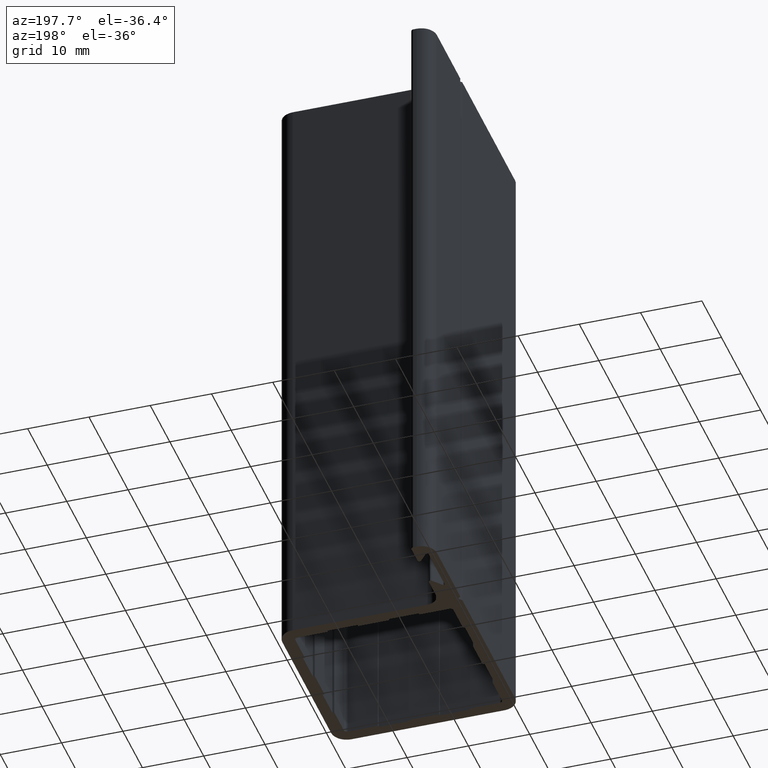
[diagram: clean part render]
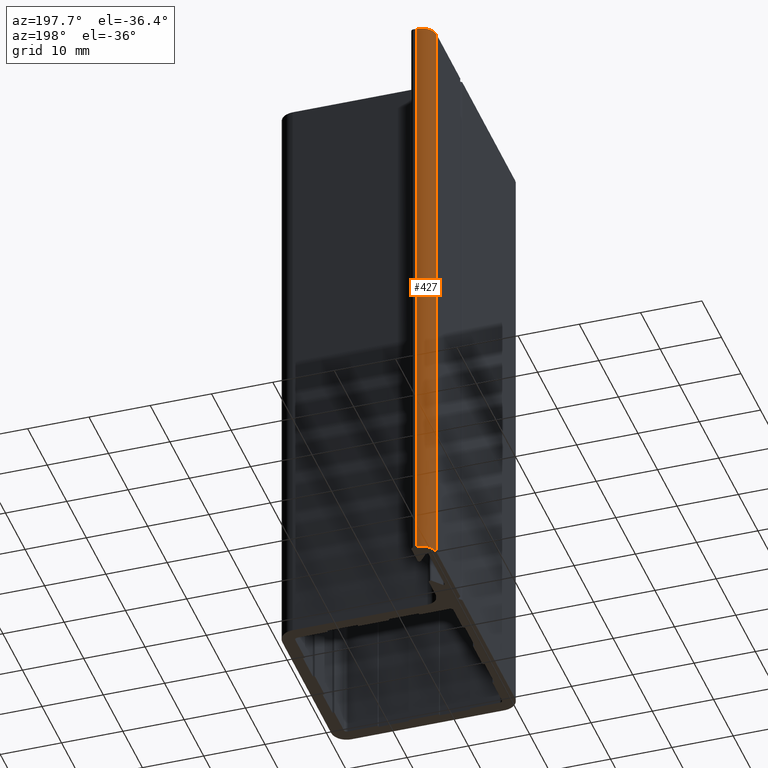
[diagram: same view with one face highlighted and labeled with its STEP entity id]
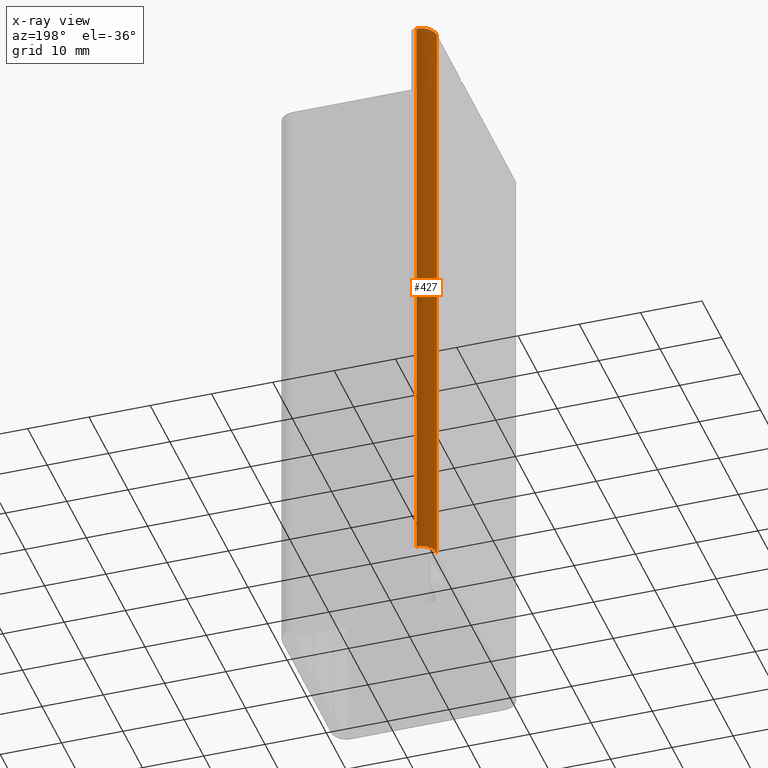
[diagram: x-ray of the same camera — body ghosted, the highlighted face saturated]
A machine part, auxiliary view. The second image highlights one B-rep face of the part: STEP entity #427.
The next image is the same camera in x-ray: the body ghosted, the highlighted face saturated — about 0% of this face is hidden behind the body in this view.
In plain terms, the highlighted cylindrical surface (edge-blend (fillet) strip) has radius 2.5 mm, axis along (0, 0, 1).
Its self-contained STEP definition (entity closure, byte-faithful):
#369=CARTESIAN_POINT('',(-27.499999997220016,29.999999997214445,0.0));
#370=VERTEX_POINT('',#369);
#377=CARTESIAN_POINT('',(-27.499999997220016,29.999999997214445,100.0));
#378=VERTEX_POINT('',#377);
#379=CARTESIAN_POINT('',(-27.499999997220016,29.999999997214445,0.0));
#380=DIRECTION('',(0.0,0.0,1.0));
#381=VECTOR('',#380,100.0);
#382=LINE('',#379,#381);
#383=EDGE_CURVE('',#370,#378,#382,.T.);
#395=CARTESIAN_POINT('',(-27.499999997220016,27.499999997464556,0.0));
#396=DIRECTION('',(0.0,0.0,1.0));
#397=DIRECTION('',(1.0,0.0,0.0));
#398=AXIS2_PLACEMENT_3D('',#395,#396,#397);
#399=CYLINDRICAL_SURFACE('',#398,2.499999999749999);
#400=CARTESIAN_POINT('',(-29.999999996970018,27.499999997464556,0.0));
#401=VERTEX_POINT('',#400);
#402=CARTESIAN_POINT('',(-27.499999997220016,27.499999997464556,0.0));
#403=DIRECTION('',(0.0,0.0,1.0));
#404=DIRECTION('',(1.0,0.0,0.0));
#405=AXIS2_PLACEMENT_3D('',#402,#403,#404);
#406=CIRCLE('',#405,2.499999999749999);
#407=EDGE_CURVE('',#370,#401,#406,.T.);
#408=ORIENTED_EDGE('',*,*,#407,.T.);
#409=CARTESIAN_POINT('',(-29.999999996970018,27.499999997464556,100.0));
#410=VERTEX_POINT('',#409);
#411=CARTESIAN_POINT('',(-29.999999996970018,27.499999997464556,0.0));
#412=DIRECTION('',(0.0,0.0,1.0));
#413=VECTOR('',#412,100.0);
#414=LINE('',#411,#413);
#415=EDGE_CURVE('',#401,#410,#414,.T.);
#416=ORIENTED_EDGE('',*,*,#415,.T.);
#417=CARTESIAN_POINT('',(-27.499999997220016,27.499999997464556,100.0));
#418=DIRECTION('',(0.0,0.0,1.0));
#419=DIRECTION('',(1.0,0.0,0.0));
#420=AXIS2_PLACEMENT_3D('',#417,#418,#419);
#421=CIRCLE('',#420,2.499999999749999);
#422=EDGE_CURVE('',#378,#410,#421,.T.);
#423=ORIENTED_EDGE('',*,*,#422,.F.);
#424=ORIENTED_EDGE('',*,*,#383,.F.);
#425=EDGE_LOOP('',(#408,#416,#423,#424));
#426=FACE_OUTER_BOUND('',#425,.T.);
#427=ADVANCED_FACE('',(#426),#399,.T.);